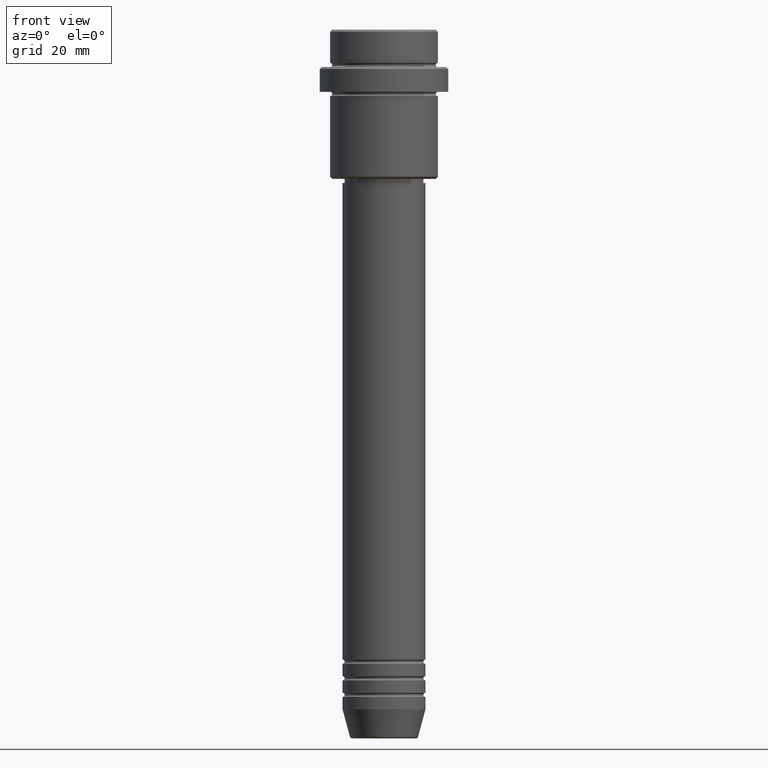
[diagram: clean part render]
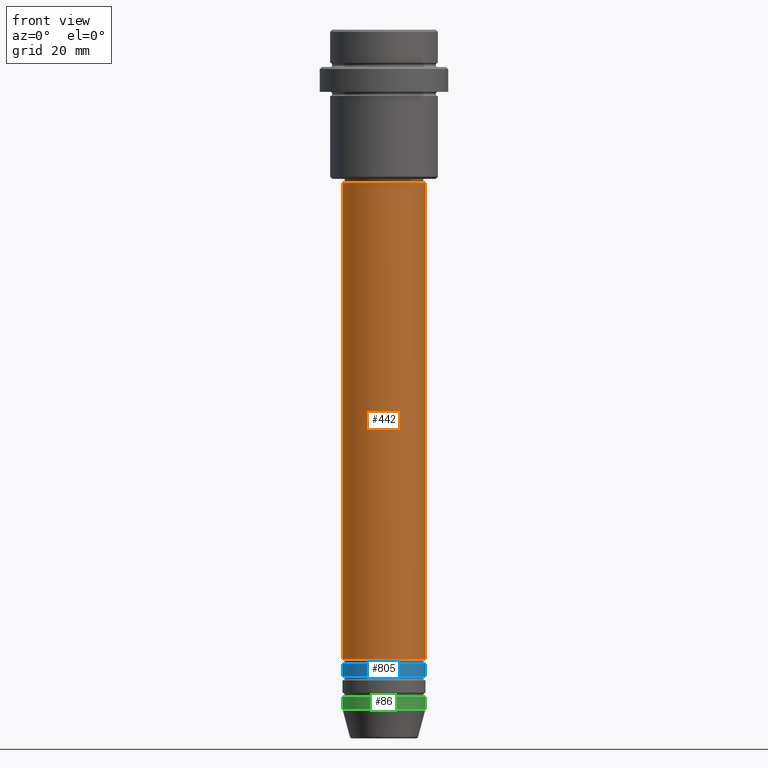
[diagram: same view with three faces highlighted in distinct colors, each labeled with its STEP entity id]
A machine part, front view with three faces highlighted in distinct colors.
Their STEP definitions:

[orange] entity #442 — the highlighted cylindrical surface (partial cylindrical patch) has radius 10 mm, axis along (-0, -0, 1).
#30 = DIRECTION ( 'NONE',  ( -0.000000000000000000, -0.000000000000000000, 1.000000000000000000 ) ) ;
#56 = CARTESIAN_POINT ( 'NONE',  ( -10.00000000000000178, 1.224646799147353454E-15, 0.000000000000000000 ) ) ;
#62 = DIRECTION ( 'NONE',  ( -0.000000000000000000, -0.000000000000000000, 1.000000000000000000 ) ) ;
#137 = FACE_OUTER_BOUND ( 'NONE', #373, .T. ) ;
#214 = EDGE_CURVE ( 'NONE', #315, #824, #635, .T. ) ;
#252 = ORIENTED_EDGE ( 'NONE', *, *, #925, .T. ) ;
#277 = CIRCLE ( 'NONE', #1079, 10.00000000000000000 ) ;
#286 = DIRECTION ( 'NONE',  ( 1.000000000000000000, 0.000000000000000000, 0.000000000000000000 ) ) ;
#297 = VERTEX_POINT ( 'NONE', #1241 ) ;
#315 = VERTEX_POINT ( 'NONE', #355 ) ;
#345 = VECTOR ( 'NONE', #908, 1000.000000000000000 ) ;
#355 = CARTESIAN_POINT ( 'NONE',  ( 10.00000000000000000, 0.000000000000000000, -151.9999999999998863 ) ) ;
#373 = EDGE_LOOP ( 'NONE', ( #919, #252, #714, #697 ) ) ;
#442 = ADVANCED_FACE ( 'NONE', ( #137 ), #580, .T. ) ;
#470 = DIRECTION ( 'NONE',  ( 1.000000000000000000, 0.000000000000000000, 0.000000000000000000 ) ) ;
#500 = DIRECTION ( 'NONE',  ( 1.000000000000000000, 0.000000000000000000, 0.000000000000000000 ) ) ;
#536 = EDGE_CURVE ( 'NONE', #297, #1031, #1246, .T. ) ;
#580 = CYLINDRICAL_SURFACE ( 'NONE', #1022, 10.00000000000000178 ) ;
#608 = CARTESIAN_POINT ( 'NONE',  ( 0.000000000000000000, 0.000000000000000000, -37.00000000000000000 ) ) ;
#635 = LINE ( 'NONE', #876, #904 ) ;
#697 = ORIENTED_EDGE ( 'NONE', *, *, #979, .F. ) ;
#714 = ORIENTED_EDGE ( 'NONE', *, *, #214, .T. ) ;
#755 = CIRCLE ( 'NONE', #820, 10.00000000000000178 ) ;
#808 = CARTESIAN_POINT ( 'NONE',  ( 0.000000000000000000, 0.000000000000000000, -151.9999999999998863 ) ) ;
#820 = AXIS2_PLACEMENT_3D ( 'NONE', #608, #62, #500 ) ;
#824 = VERTEX_POINT ( 'NONE', #888 ) ;
#876 = CARTESIAN_POINT ( 'NONE',  ( 10.00000000000000178, 0.000000000000000000, 0.000000000000000000 ) ) ;
#888 = CARTESIAN_POINT ( 'NONE',  ( 10.00000000000000178, 0.000000000000000000, -37.00000000000000000 ) ) ;
#904 = VECTOR ( 'NONE', #1095, 1000.000000000000000 ) ;
#908 = DIRECTION ( 'NONE',  ( -0.000000000000000000, -0.000000000000000000, 1.000000000000000000 ) ) ;
#919 = ORIENTED_EDGE ( 'NONE', *, *, #536, .F. ) ;
#925 = EDGE_CURVE ( 'NONE', #297, #315, #277, .T. ) ;
#979 = EDGE_CURVE ( 'NONE', #1031, #824, #755, .T. ) ;
#1011 = CARTESIAN_POINT ( 'NONE',  ( 0.000000000000000000, 0.000000000000000000, 0.000000000000000000 ) ) ;
#1022 = AXIS2_PLACEMENT_3D ( 'NONE', #1011, #30, #470 ) ;
#1031 = VERTEX_POINT ( 'NONE', #1415 ) ;
#1079 = AXIS2_PLACEMENT_3D ( 'NONE', #808, #1364, #286 ) ;
#1095 = DIRECTION ( 'NONE',  ( -0.000000000000000000, -0.000000000000000000, 1.000000000000000000 ) ) ;
#1241 = CARTESIAN_POINT ( 'NONE',  ( -10.00000000000000000, 1.224646799147353256E-15, -151.9999999999998863 ) ) ;
#1246 = LINE ( 'NONE', #56, #345 ) ;
#1364 = DIRECTION ( 'NONE',  ( -0.000000000000000000, -0.000000000000000000, 1.000000000000000000 ) ) ;
#1415 = CARTESIAN_POINT ( 'NONE',  ( -10.00000000000000178, 1.224646799147353454E-15, -37.00000000000000000 ) ) ;

[blue] entity #805 — the highlighted cylindrical surface (partial cylindrical patch) has radius 10 mm, axis along (-0, -0, 1).
#27 = ORIENTED_EDGE ( 'NONE', *, *, #356, .F. ) ;
#49 = CARTESIAN_POINT ( 'NONE',  ( -10.00000000000000000, 1.224646799147353256E-15, -155.9999999999998863 ) ) ;
#180 = AXIS2_PLACEMENT_3D ( 'NONE', #1322, #465, #245 ) ;
#193 = CARTESIAN_POINT ( 'NONE',  ( 10.00000000000000000, 0.000000000000000000, -152.9999999999998863 ) ) ;
#239 = CYLINDRICAL_SURFACE ( 'NONE', #1261, 10.00000000000000000 ) ;
#245 = DIRECTION ( 'NONE',  ( 1.000000000000000000, 0.000000000000000000, 0.000000000000000000 ) ) ;
#269 = DIRECTION ( 'NONE',  ( 1.000000000000000000, 0.000000000000000000, 0.000000000000000000 ) ) ;
#356 = EDGE_CURVE ( 'NONE', #1081, #631, #1075, .T. ) ;
#371 = DIRECTION ( 'NONE',  ( -0.000000000000000000, -0.000000000000000000, 1.000000000000000000 ) ) ;
#393 = LINE ( 'NONE', #1260, #1003 ) ;
#446 = DIRECTION ( 'NONE',  ( -0.000000000000000000, -0.000000000000000000, 1.000000000000000000 ) ) ;
#462 = VERTEX_POINT ( 'NONE', #49 ) ;
#465 = DIRECTION ( 'NONE',  ( -0.000000000000000000, -0.000000000000000000, 1.000000000000000000 ) ) ;
#483 = ORIENTED_EDGE ( 'NONE', *, *, #1153, .T. ) ;
#533 = VERTEX_POINT ( 'NONE', #725 ) ;
#631 = VERTEX_POINT ( 'NONE', #193 ) ;
#673 = AXIS2_PLACEMENT_3D ( 'NONE', #1040, #371, #269 ) ;
#681 = DIRECTION ( 'NONE',  ( 1.000000000000000000, 0.000000000000000000, 0.000000000000000000 ) ) ;
#685 = ORIENTED_EDGE ( 'NONE', *, *, #1259, .T. ) ;
#716 = DIRECTION ( 'NONE',  ( -0.000000000000000000, -0.000000000000000000, 1.000000000000000000 ) ) ;
#725 = CARTESIAN_POINT ( 'NONE',  ( 10.00000000000000000, 0.000000000000000000, -155.9999999999998863 ) ) ;
#743 = DIRECTION ( 'NONE',  ( -0.000000000000000000, -0.000000000000000000, 1.000000000000000000 ) ) ;
#804 = EDGE_LOOP ( 'NONE', ( #1198, #685, #483, #27 ) ) ;
#805 = ADVANCED_FACE ( 'NONE', ( #1213 ), #239, .T. ) ;
#822 = VECTOR ( 'NONE', #743, 1000.000000000000000 ) ;
#948 = EDGE_CURVE ( 'NONE', #462, #1081, #393, .T. ) ;
#951 = LINE ( 'NONE', #1389, #822 ) ;
#1003 = VECTOR ( 'NONE', #716, 1000.000000000000000 ) ;
#1004 = CARTESIAN_POINT ( 'NONE',  ( 0.000000000000000000, 0.000000000000000000, 0.000000000000000000 ) ) ;
#1040 = CARTESIAN_POINT ( 'NONE',  ( 0.000000000000000000, 0.000000000000000000, -155.9999999999998863 ) ) ;
#1053 = CIRCLE ( 'NONE', #673, 10.00000000000000000 ) ;
#1075 = CIRCLE ( 'NONE', #180, 10.00000000000000000 ) ;
#1081 = VERTEX_POINT ( 'NONE', #1408 ) ;
#1153 = EDGE_CURVE ( 'NONE', #533, #631, #951, .T. ) ;
#1198 = ORIENTED_EDGE ( 'NONE', *, *, #948, .F. ) ;
#1213 = FACE_OUTER_BOUND ( 'NONE', #804, .T. ) ;
#1259 = EDGE_CURVE ( 'NONE', #462, #533, #1053, .T. ) ;
#1260 = CARTESIAN_POINT ( 'NONE',  ( -10.00000000000000000, 1.224646799147353256E-15, 0.000000000000000000 ) ) ;
#1261 = AXIS2_PLACEMENT_3D ( 'NONE', #1004, #446, #681 ) ;
#1322 = CARTESIAN_POINT ( 'NONE',  ( 0.000000000000000000, 0.000000000000000000, -152.9999999999998863 ) ) ;
#1389 = CARTESIAN_POINT ( 'NONE',  ( 10.00000000000000000, 0.000000000000000000, 0.000000000000000000 ) ) ;
#1408 = CARTESIAN_POINT ( 'NONE',  ( -10.00000000000000000, 1.224646799147353256E-15, -152.9999999999998863 ) ) ;

[green] entity #86 — the highlighted cylindrical surface (partial cylindrical patch) has radius 10 mm, axis along (-0, -0, 1).
#61 = EDGE_CURVE ( 'NONE', #679, #736, #457, .T. ) ;
#74 = DIRECTION ( 'NONE',  ( 1.000000000000000000, 0.000000000000000000, 0.000000000000000000 ) ) ;
#79 = CARTESIAN_POINT ( 'NONE',  ( 0.000000000000000000, 0.000000000000000000, -161.0000000000000000 ) ) ;
#86 = ADVANCED_FACE ( 'NONE', ( #386 ), #732, .T. ) ;
#99 = EDGE_CURVE ( 'NONE', #1014, #1352, #1308, .T. ) ;
#164 = DIRECTION ( 'NONE',  ( -0.000000000000000000, -0.000000000000000000, 1.000000000000000000 ) ) ;
#265 = DIRECTION ( 'NONE',  ( 1.000000000000000000, 0.000000000000000000, 0.000000000000000000 ) ) ;
#292 = CARTESIAN_POINT ( 'NONE',  ( -10.00000000000000000, 1.224646799147353256E-15, -164.0000000000000000 ) ) ;
#386 = FACE_OUTER_BOUND ( 'NONE', #1224, .T. ) ;
#395 = DIRECTION ( 'NONE',  ( -0.000000000000000000, -0.000000000000000000, 1.000000000000000000 ) ) ;
#457 = CIRCLE ( 'NONE', #927, 10.00000000000000000 ) ;
#555 = VECTOR ( 'NONE', #395, 1000.000000000000000 ) ;
#592 = CARTESIAN_POINT ( 'NONE',  ( -10.00000000000000000, 1.224646799147353256E-15, 0.000000000000000000 ) ) ;
#615 = CARTESIAN_POINT ( 'NONE',  ( 10.00000000000000000, 0.000000000000000000, 0.000000000000000000 ) ) ;
#618 = DIRECTION ( 'NONE',  ( -0.000000000000000000, -0.000000000000000000, 1.000000000000000000 ) ) ;
#668 = AXIS2_PLACEMENT_3D ( 'NONE', #947, #1387, #265 ) ;
#679 = VERTEX_POINT ( 'NONE', #1067 ) ;
#703 = DIRECTION ( 'NONE',  ( 1.000000000000000000, 0.000000000000000000, 0.000000000000000000 ) ) ;
#732 = CYLINDRICAL_SURFACE ( 'NONE', #668, 10.00000000000000000 ) ;
#736 = VERTEX_POINT ( 'NONE', #1090 ) ;
#885 = EDGE_CURVE ( 'NONE', #1352, #736, #1140, .T. ) ;
#902 = ORIENTED_EDGE ( 'NONE', *, *, #885, .T. ) ;
#927 = AXIS2_PLACEMENT_3D ( 'NONE', #79, #618, #74 ) ;
#928 = AXIS2_PLACEMENT_3D ( 'NONE', #1367, #164, #703 ) ;
#947 = CARTESIAN_POINT ( 'NONE',  ( 0.000000000000000000, 0.000000000000000000, 0.000000000000000000 ) ) ;
#1014 = VERTEX_POINT ( 'NONE', #292 ) ;
#1046 = DIRECTION ( 'NONE',  ( -0.000000000000000000, -0.000000000000000000, 1.000000000000000000 ) ) ;
#1051 = VECTOR ( 'NONE', #1046, 1000.000000000000000 ) ;
#1067 = CARTESIAN_POINT ( 'NONE',  ( -10.00000000000000000, 1.224646799147353256E-15, -161.0000000000000000 ) ) ;
#1090 = CARTESIAN_POINT ( 'NONE',  ( 10.00000000000000000, 0.000000000000000000, -161.0000000000000000 ) ) ;
#1124 = CARTESIAN_POINT ( 'NONE',  ( 10.00000000000000000, 0.000000000000000000, -164.0000000000000000 ) ) ;
#1140 = LINE ( 'NONE', #615, #1051 ) ;
#1224 = EDGE_LOOP ( 'NONE', ( #1256, #1324, #902, #1345 ) ) ;
#1252 = LINE ( 'NONE', #592, #555 ) ;
#1256 = ORIENTED_EDGE ( 'NONE', *, *, #1292, .F. ) ;
#1292 = EDGE_CURVE ( 'NONE', #1014, #679, #1252, .T. ) ;
#1308 = CIRCLE ( 'NONE', #928, 10.00000000000000000 ) ;
#1324 = ORIENTED_EDGE ( 'NONE', *, *, #99, .T. ) ;
#1345 = ORIENTED_EDGE ( 'NONE', *, *, #61, .F. ) ;
#1352 = VERTEX_POINT ( 'NONE', #1124 ) ;
#1367 = CARTESIAN_POINT ( 'NONE',  ( 0.000000000000000000, 0.000000000000000000, -164.0000000000000000 ) ) ;
#1387 = DIRECTION ( 'NONE',  ( -0.000000000000000000, -0.000000000000000000, 1.000000000000000000 ) ) ;